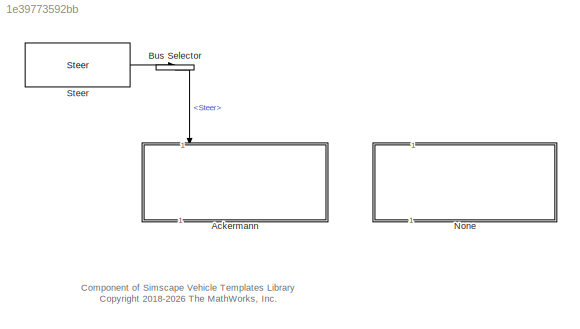
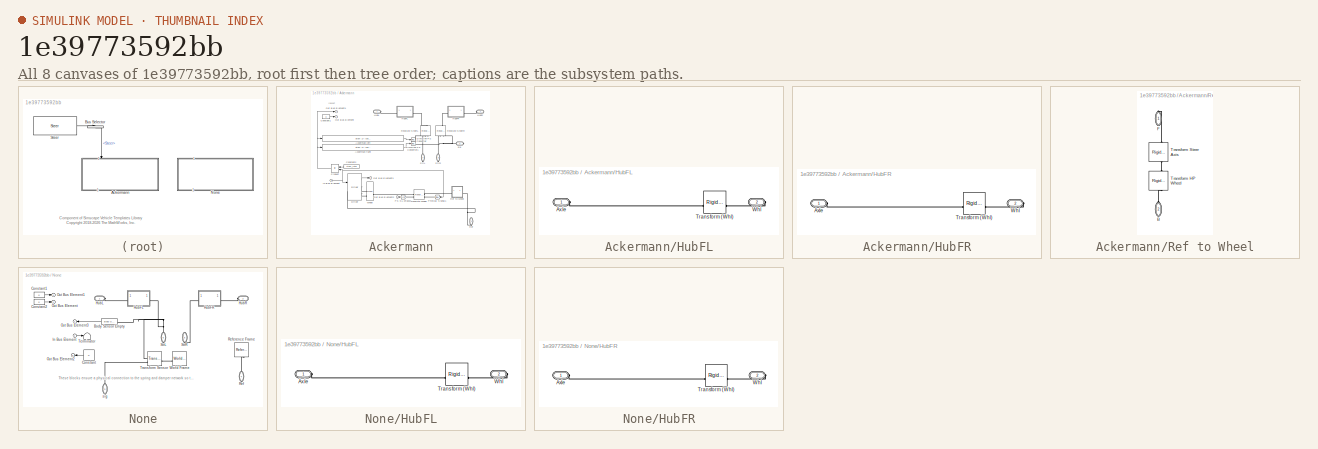
[diagram: thumbnail index - all 8 canvases of the model, root first then tree order]
MODEL slx_1e39773592bb
KIND library
CONFIG SolverName = VariableStepAuto
CONFIG StopTime = 25
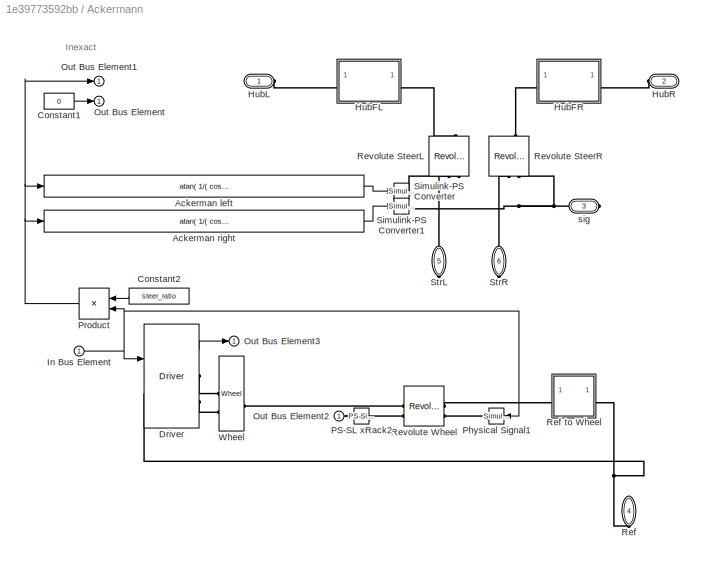
BLOCK [SubSystem] Ackermann
  NameLocation = left
  VariantControl = Ackermann
BLOCK [Fcn] Ackermann/Ackerman left
  Expr = atan( 1/( cos(u+eps)/sin(u+eps) - yTrack/(2*xwheelbase) ) )
  NameLocation = top
BLOCK [Fcn] Ackermann/Ackerman right
  Expr = atan( 1/( cos(u+eps)/sin(u+eps) + yTrack/(2*xwheelbase) ) )
BLOCK [Constant] Ackermann/Constant1
  Value = 0
BLOCK [Constant] Ackermann/Constant2
  Value = steer_ratio
BLOCK [Reference] Ackermann/Driver  REF=Human_Models/Driver
  AttributesFormatString = %<LabelModeActiveChoice>
  SourceBlock = Human_Models/Driver
BLOCK [SubSystem] Ackermann/HubFL
BLOCK [PMIOPort] Ackermann/HubFL/Axle
  Side = Left
BLOCK [Reference] Ackermann/HubFL/Transform (Whl)  REF=sm_lib/Frames and
Transforms/Rigid
Transform
  SourceBlock = sm_lib/Frames and\nTransforms/Rigid\nTransform
  SourceType = Rigid\nTransform
BLOCK [PMIOPort] Ackermann/HubFL/Whl
  Port = 2
  Side = Right
BLOCK [SubSystem] Ackermann/HubFR
BLOCK [PMIOPort] Ackermann/HubFR/Axle
  Side = Left
BLOCK [Reference] Ackermann/HubFR/Transform (Whl)  REF=sm_lib/Frames and
Transforms/Rigid
Transform
  SourceBlock = sm_lib/Frames and\nTransforms/Rigid\nTransform
  SourceType = Rigid\nTransform
BLOCK [PMIOPort] Ackermann/HubFR/Whl
  Port = 2
  Side = Right
BLOCK [PMIOPort] Ackermann/HubL
  Side = Left
BLOCK [PMIOPort] Ackermann/HubR
  Port = 2
  Side = Left
BLOCK [Inport] Ackermann/In Bus Element
BLOCK [Outport] Ackermann/Out Bus Element
  VectorParamsAs1DForOutWhenUnconnected = off
BLOCK [Outport] Ackermann/Out Bus Element1
  VectorParamsAs1DForOutWhenUnconnected = off
BLOCK [Outport] Ackermann/Out Bus Element2
  VectorParamsAs1DForOutWhenUnconnected = off
BLOCK [Outport] Ackermann/Out Bus Element3
  VectorParamsAs1DForOutWhenUnconnected = off
BLOCK [Reference] Ackermann/PS-SL xRack2  REF=nesl_utility/PS-Simulink
Converter
  SourceBlock = nesl_utility/PS-Simulink\nConverter
  SourceType = PS-Simulink\nConverter
BLOCK [Reference] Ackermann/Physical Signal1  REF=nesl_utility/Simulink-PS
Converter
  AttributesFormatString = Filter Time Constant\n%<InputFilterTimeConstant> sec
  SourceBlock = nesl_utility/Simulink-PS\nConverter
  SourceType = Simulink-PS\nConverter
BLOCK [Product] Ackermann/Product
BLOCK [PMIOPort] Ackermann/Ref
  NameLocation = right
  Port = 4
  Side = Right
BLOCK [SubSystem] Ackermann/Ref to Wheel
BLOCK [PMIOPort] Ackermann/Ref to Wheel/B
  NameLocation = right
  Port = 2
  Side = Left
BLOCK [PMIOPort] Ackermann/Ref to Wheel/F
  NameLocation = left
  Side = Right
BLOCK [Reference] Ackermann/Ref to Wheel/Transform HP Wheel  REF=sm_lib/Frames and
Transforms/Rigid
Transform
  NameLocation = left
  SourceBlock = sm_lib/Frames and\nTransforms/Rigid\nTransform
  SourceType = Rigid\nTransform
BLOCK [Reference] Ackermann/Ref to Wheel/Transform Steer Axis  REF=sm_lib/Frames and
Transforms/Rigid
Transform
  NameLocation = left
  SourceBlock = sm_lib/Frames and\nTransforms/Rigid\nTransform
  SourceType = Rigid\nTransform
BLOCK [Reference] Ackermann/Revolute SteerL  REF=sm_lib/Joints/Revolute Joint
  NameLocation = left
  SourceBlock = sm_lib/Joints/Revolute Joint
  SourceType = Revolute Joint
BLOCK [Reference] Ackermann/Revolute SteerR  REF=sm_lib/Joints/Revolute Joint
  NameLocation = right
  SourceBlock = sm_lib/Joints/Revolute Joint
  SourceType = Revolute Joint
BLOCK [Reference] Ackermann/Revolute Wheel  REF=sm_lib/Joints/Revolute Joint
  SourceBlock = sm_lib/Joints/Revolute Joint
  SourceType = Revolute Joint
BLOCK [Reference] Ackermann/Simulink-PS Converter  REF=nesl_utility/Simulink-PS
Converter
  SourceBlock = nesl_utility/Simulink-PS\nConverter
  SourceType = Simulink-PS\nConverter
BLOCK [Reference] Ackermann/Simulink-PS Converter1  REF=nesl_utility/Simulink-PS
Converter
  SourceBlock = nesl_utility/Simulink-PS\nConverter
  SourceType = Simulink-PS\nConverter
BLOCK [PMIOPort] Ackermann/StrL
  NameLocation = right
  Port = 5
  Side = Right
BLOCK [PMIOPort] Ackermann/StrR
  NameLocation = right
  Port = 6
  Side = Right
BLOCK [Reference] Ackermann/Wheel  REF=SteeringWheel_Systems/Wheel
  SourceBlock = SteeringWheel_Systems/Wheel
BLOCK [PMIOPort] Ackermann/sig
  Port = 3
  Side = Right
BLOCK [BusSelector] Bus Selector
  NameLocation = left
  OutputSignals = Steer
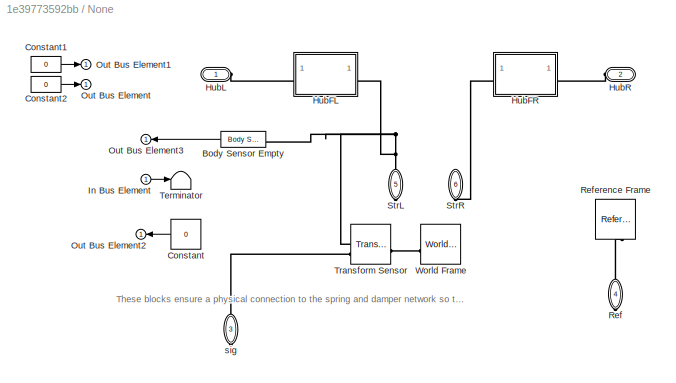
BLOCK [SubSystem] None
  NameLocation = left
  VariantControl = None
BLOCK [Reference] None/Body Sensor Empty  REF=sm_car_lib/Sensors/Body Sensor Empty  (lib defined in slx_05426f0848b6, slx_5dc2867fb1c9)
  SourceBlock = sm_car_lib/Sensors/Body Sensor Empty
BLOCK [Constant] None/Constant
  NameLocation = top
  Value = 0
BLOCK [Constant] None/Constant1
  Value = 0
BLOCK [Constant] None/Constant2
  Value = 0
BLOCK [SubSystem] None/HubFL
BLOCK [PMIOPort] None/HubFL/Axle
  Side = Left
BLOCK [Reference] None/HubFL/Transform (Whl)  REF=sm_lib/Frames and
Transforms/Rigid
Transform
  SourceBlock = sm_lib/Frames and\nTransforms/Rigid\nTransform
  SourceType = Rigid\nTransform
BLOCK [PMIOPort] None/HubFL/Whl
  Port = 2
  Side = Right
BLOCK [SubSystem] None/HubFR
BLOCK [PMIOPort] None/HubFR/Axle
  Side = Left
BLOCK [Reference] None/HubFR/Transform (Whl)  REF=sm_lib/Frames and
Transforms/Rigid
Transform
  SourceBlock = sm_lib/Frames and\nTransforms/Rigid\nTransform
  SourceType = Rigid\nTransform
BLOCK [PMIOPort] None/HubFR/Whl
  Port = 2
  Side = Right
BLOCK [PMIOPort] None/HubL
  Side = Left
BLOCK [PMIOPort] None/HubR
  Port = 2
  Side = Left
BLOCK [Inport] None/In Bus Element
BLOCK [Outport] None/Out Bus Element
  VectorParamsAs1DForOutWhenUnconnected = off
BLOCK [Outport] None/Out Bus Element1
  VectorParamsAs1DForOutWhenUnconnected = off
BLOCK [Outport] None/Out Bus Element2
  VectorParamsAs1DForOutWhenUnconnected = off
BLOCK [Outport] None/Out Bus Element3
  VectorParamsAs1DForOutWhenUnconnected = off
BLOCK [PMIOPort] None/Ref
  NameLocation = right
  Port = 4
  Side = Right
BLOCK [Reference] None/Reference Frame  REF=sm_lib/Frames and
Transforms/Reference
Frame
  NameLocation = left
  SourceBlock = sm_lib/Frames and\nTransforms/Reference\nFrame
  SourceType = Reference\nFrame
BLOCK [PMIOPort] None/StrL
  NameLocation = right
  Port = 5
  Side = Right
BLOCK [PMIOPort] None/StrR
  NameLocation = right
  Port = 6
  Side = Right
BLOCK [Terminator] None/Terminator
BLOCK [Reference] None/Transform Sensor  REF=sm_lib/Frames and
Transforms/Transform
Sensor
  SourceBlock = sm_lib/Frames and\nTransforms/Transform\nSensor
  SourceType = Transform\nSensor
BLOCK [Reference] None/World Frame  REF=sm_lib/Frames and
Transforms/World Frame
  SourceBlock = sm_lib/Frames and\nTransforms/World Frame
  SourceType = World Frame
BLOCK [PMIOPort] None/sig
  NameLocation = left
  Port = 3
  Side = Right
BLOCK [Reference] Steer  REF=sm_car_lib/Control/Steer  (lib defined in slx_05426f0848b6, slx_5dc2867fb1c9)
  SourceBlock = sm_car_lib/Control/Steer
ANNOTATION (root): Component of Simscape Vehicle Templates Library <copyright redacted>
ANNOTATION Ackermann: Inexact
ANNOTATION None: These blocks ensure a physical connection to the spring and damper network so that there is a single Simscape network in the model.
LINE Bus Selector:1 -> Ackermann:1
LINE None/Body Sensor Empty:1 -> None/Out Bus Element3:1
LINE None/Constant1:1 -> None/Out Bus Element1:1
LINE None/Constant2:1 -> None/Out Bus Element:1
LINE None/Constant:1 -> None/Out Bus Element2:1
LINE None/In Bus Element:1 -> None/Terminator:1
LINE Steer:1 -> Bus Selector:1
PNET net1: None/Body Sensor Empty:LConn1 -- None/HubFL:LConn1 -- None/StrL:RConn1 -- None/Transform Sensor:RConn1
PLINE None/HubFL/Axle:RConn1 -- None/HubFL/Transform (Whl):LConn1
PLINE None/HubFL/Transform (Whl):RConn1 -- None/HubFL/Whl:RConn1
PLINE None/HubFL:RConn1 -- None/HubL:RConn1
PLINE None/HubFR/Axle:RConn1 -- None/HubFR/Transform (Whl):LConn1
PLINE None/HubFR/Transform (Whl):RConn1 -- None/HubFR/Whl:RConn1
PLINE None/HubFR:LConn1 -- None/StrR:RConn1
PLINE None/HubFR:RConn1 -- None/HubR:RConn1
PLINE None/Ref:RConn1 -- None/Reference Frame:RConn1
PLINE None/Transform Sensor:LConn1 -- None/World Frame:RConn1
PLINE None/Transform Sensor:RConn2 -- None/sig:RConn1
note: PNET lines group multi-terminal physical nets as a canonical sorted terminal list (undirected conserving connections); 2-terminal nets keep the pairwise PLINE form
